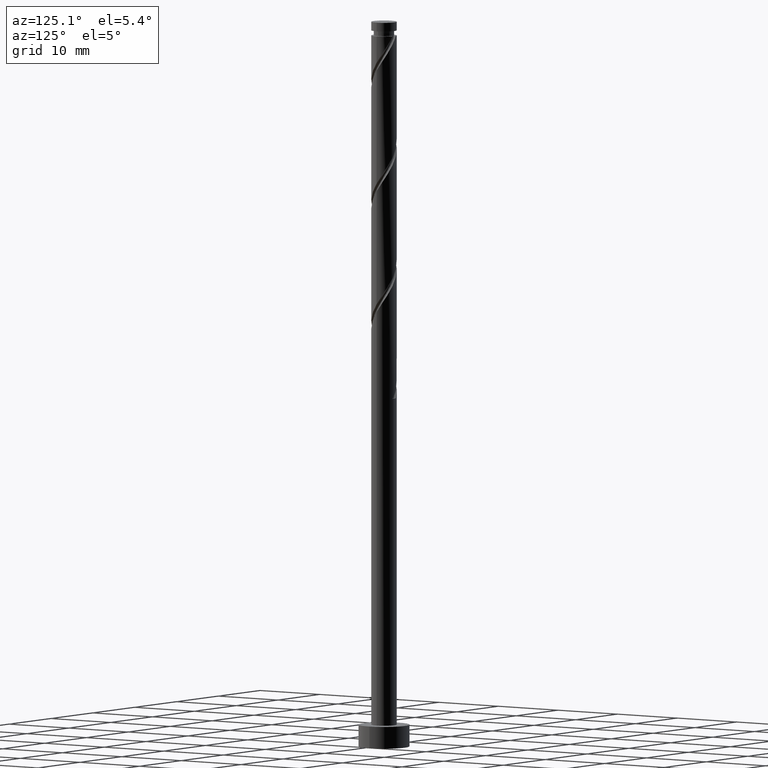
[diagram: clean part render]
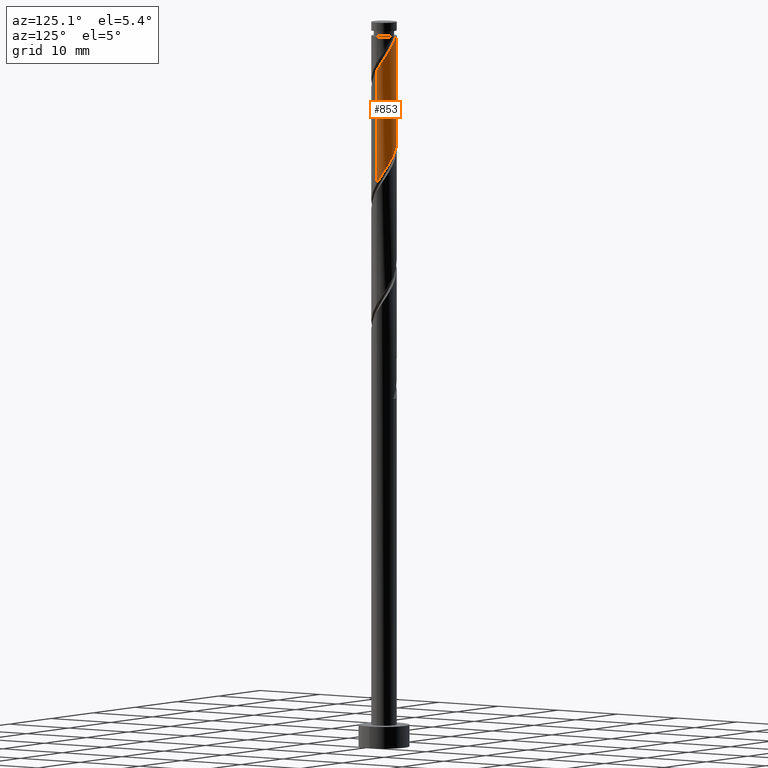
[diagram: same view with one face highlighted and labeled with its STEP entity id]
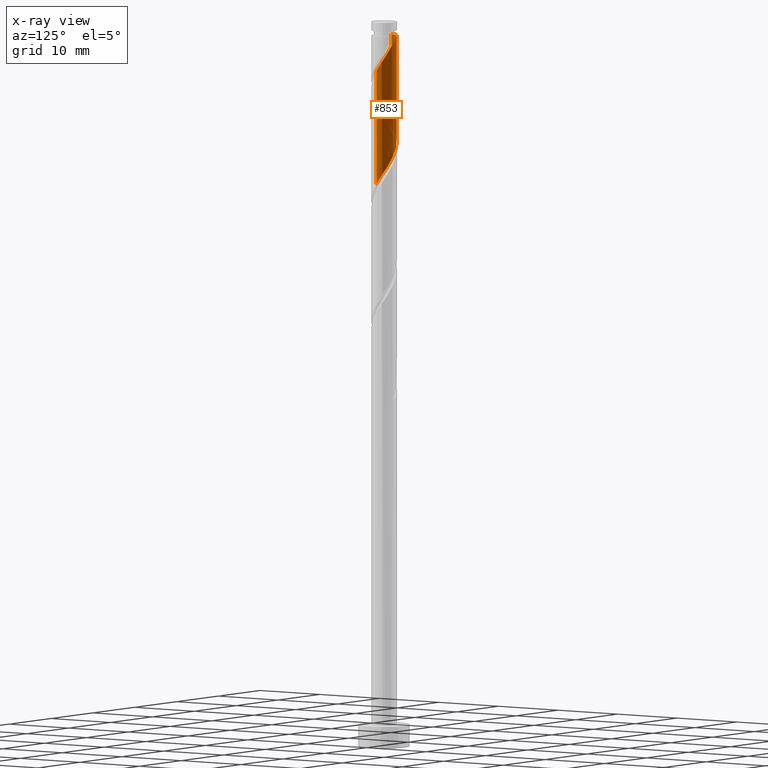
[diagram: x-ray of the same camera — body ghosted, the highlighted face saturated]
A machine part, auxiliary view. The second image highlights one B-rep face of the part: STEP entity #853.
The next image is the same camera in x-ray: the body ghosted, the highlighted face saturated — about 0% of this face is hidden behind the body in this view.
In plain terms, the highlighted cylindrical surface (edge-blend (fillet) strip) has radius 1.75 mm, axis along (-0, -0, -1).
Its self-contained STEP definition (entity closure, byte-faithful):
#7 = CARTESIAN_POINT ( 'NONE',  ( 1.750000000000001998, 0.02257793008104069798, 93.44285591133315449 ) ) ;
#12 = CARTESIAN_POINT ( 'NONE',  ( -0.8356091416033630814, 1.537614178677112253, 83.29154527757476956 ) ) ;
#26 = EDGE_CURVE ( 'NONE', #1390, #129, #1376, .T. ) ;
#27 = CARTESIAN_POINT ( 'NONE',  ( -1.515489524769283225, 0.9279053362006939309, 84.68043416646365529 ) ) ;
#33 =( BOUNDED_CURVE ( )  B_SPLINE_CURVE ( 2, ( #1128, #7, #478, #369, #114, #1479, #934, #1385, #1356, #796, #337, #700, #460 ),
 .UNSPECIFIED., .F., .T. ) 
 B_SPLINE_CURVE_WITH_KNOTS ( ( 3, 2, 2, 2, 2, 2, 3 ),
 ( 0.6795248053855292847, 0.6805555555555555802, 0.6944444444444444198, 0.7083333333333332593, 0.7222222222222222099, 0.7361111111111111605, 0.7500000000000000000 ),
 .UNSPECIFIED. ) 
 CURVE ( )  GEOMETRIC_REPRESENTATION_ITEM ( )  RATIONAL_B_SPLINE_CURVE ( ( 0.9071930855141268069, 0.9080659294509743074, 0.9090909090909141677, 0.8952797754656484086, 0.9090909090909141677, 0.8952797754656484086, 0.9090909090909141677, 0.8952797754656484086, 0.9090909090909141677, 0.8952797754656484086, 0.9090909090909141677, 0.8952797754656484086, 0.9090909090909141677 ) ) 
 REPRESENTATION_ITEM ( '' )  );
#38 = CARTESIAN_POINT ( 'NONE',  ( 1.750000000000001998, 7.693567771650252350E-16, 93.40883853740081122 ) ) ;
#47 = ORIENTED_EDGE ( 'NONE', *, *, #1189, .F. ) ;
#55 = CARTESIAN_POINT ( 'NONE',  ( 1.749999999999999778, 0.2853451506857985209, 78.23380115974399018 ) ) ;
#114 = CARTESIAN_POINT ( 'NONE',  ( 1.628473082076670186, 0.6407615944731065438, 94.40265638868586962 ) ) ;
#129 = VERTEX_POINT ( 'NONE', #1010 ) ;
#149 = CARTESIAN_POINT ( 'NONE',  ( -1.749999999999999778, 0.02257793008103501156, 86.10319760677930390 ) ) ;
#156 = CARTESIAN_POINT ( 'NONE',  ( 1.750000000000000000, 2.143131898507867804E-16, 100.0000000000000000 ) ) ;
#173 = CARTESIAN_POINT ( 'NONE',  ( 1.176970363401351971, 1.331336762922905370, 80.05080453683402197 ) ) ;
#211 = VERTEX_POINT ( 'NONE', #356 ) ;
#213 = DIRECTION ( 'NONE',  ( -1.000000000000000000, 0.000000000000000000, 0.000000000000000000 ) ) ;
#235 = DIRECTION ( 'NONE',  ( -1.000000000000000000, 0.000000000000000000, 0.000000000000000000 ) ) ;
#254 = EDGE_CURVE ( 'NONE', #1390, #211, #800, .T. ) ;
#263 = CARTESIAN_POINT ( 'NONE',  ( 1.750000000000000000, 3.660046803988976504E-16, 77.80388164737831858 ) ) ;
#281 = EDGE_LOOP ( 'NONE', ( #47, #728, #1168, #1269, #671 ) ) ;
#292 = CARTESIAN_POINT ( 'NONE',  ( 1.561334355841582866, 0.8484997595190589825, 79.12487861090809815 ) ) ;
#324 = AXIS2_PLACEMENT_3D ( 'NONE', #759, #439, #213 ) ;
#337 = CARTESIAN_POINT ( 'NONE',  ( 0.2593207224552029899, 1.730679855694090330, 97.18043416646362687 ) ) ;
#356 = CARTESIAN_POINT ( 'NONE',  ( -1.749999999999999778, -1.228729998482013646E-15, 86.13721498071166138 ) ) ;
#369 = CARTESIAN_POINT ( 'NONE',  ( 1.741456639384055149, 0.3536178527455194343, 93.93969342572290770 ) ) ;
#377 = VECTOR ( 'NONE', #1118, 1000.000000000000000 ) ;
#385 = VERTEX_POINT ( 'NONE', #38 ) ;
#403 = CARTESIAN_POINT ( 'NONE',  ( -0.2593207224552012691, 1.730679855694088776, 82.36561935164881731 ) ) ;
#438 = FACE_OUTER_BOUND ( 'NONE', #281, .T. ) ;
#439 = DIRECTION ( 'NONE',  ( -0.000000000000000000, -0.000000000000000000, -1.000000000000000000 ) ) ;
#460 = CARTESIAN_POINT ( 'NONE',  ( -0.3482456029873045034, 1.715000000000003411, 98.10636009238955069 ) ) ;
#478 = CARTESIAN_POINT ( 'NONE',  ( 1.749417510755208127, 0.04514834507553524418, 93.47673046275991737 ) ) ;
#480 = CARTESIAN_POINT ( 'NONE',  ( -0.5644862759827016241, 1.684954615668426081, 82.82858231461180765 ) ) ;
#503 = VECTOR ( 'NONE', #621, 1000.000000000000000 ) ;
#521 = CARTESIAN_POINT ( 'NONE',  ( 1.749999999999999778, 3.660046803988976504E-16, 77.80388164737831858 ) ) ;
#589 = CARTESIAN_POINT ( 'NONE',  ( -1.741456639384053151, 0.3536178527455194898, 85.60636009238959332 ) ) ;
#604 = CARTESIAN_POINT ( 'NONE',  ( -1.628473082076667966, 0.6407615944731065438, 85.14339712942658878 ) ) ;
#617 = AXIS2_PLACEMENT_3D ( 'NONE', #885, #697, #235 ) ;
#621 = DIRECTION ( 'NONE',  ( -0.000000000000000000, -0.000000000000000000, -1.000000000000000000 ) ) ;
#628 = CARTESIAN_POINT ( 'NONE',  ( 0.6506463749023342347, 1.653594904280247802, 80.97673046275993158 ) ) ;
#671 = ORIENTED_EDGE ( 'NONE', *, *, #26, .T. ) ;
#697 = DIRECTION ( 'NONE',  ( -0.000000000000000000, -0.000000000000000000, -1.000000000000000000 ) ) ;
#700 = CARTESIAN_POINT ( 'NONE',  ( -0.04584483107229913451, 1.776405095719755689, 97.64339712942664562 ) ) ;
#728 = ORIENTED_EDGE ( 'NONE', *, *, #1072, .T. ) ;
#740 = CARTESIAN_POINT ( 'NONE',  ( -1.750000000000000444, 0.000000000000000000, 98.10636009238956490 ) ) ;
#742 = CARTESIAN_POINT ( 'NONE',  ( 1.369152359621467197, 1.089918261220981899, 79.58784157387104585 ) ) ;
#759 = CARTESIAN_POINT ( 'NONE',  ( 0.000000000000000000, 0.000000000000000000, 98.10636009238956490 ) ) ;
#796 = CARTESIAN_POINT ( 'NONE',  ( 0.5644862759827036225, 1.684954615668427635, 96.71747120350072180 ) ) ;
#800 = LINE ( 'NONE', #1369, #377 ) ;
#826 = LINE ( 'NONE', #156, #503 ) ;
#853 = ADVANCED_FACE ( 'NONE', ( #438 ), #1368, .T. ) ;
#854 = CARTESIAN_POINT ( 'NONE',  ( 0.3482456029873172154, 1.715000000000000080, 81.43969342572290770 ) ) ;
#885 = CARTESIAN_POINT ( 'NONE',  ( 0.000000000000000000, 0.000000000000000000, 100.0000000000000000 ) ) ;
#934 = CARTESIAN_POINT ( 'NONE',  ( 1.311110765996655214, 1.159089538943247844, 95.32858231461176501 ) ) ;
#1010 = CARTESIAN_POINT ( 'NONE',  ( -0.3482456029873045034, 1.715000000000003411, 98.10636009238955069 ) ) ;
#1040 = CARTESIAN_POINT ( 'NONE',  ( -1.311110765996653438, 1.159089538943246733, 84.21747120350066496 ) ) ;
#1072 = EDGE_CURVE ( 'NONE', #385, #1083, #826, .T. ) ;
#1079 = CARTESIAN_POINT ( 'NONE',  ( 1.659356368983970764, 0.5559104610567540128, 78.66191564794512203 ) ) ;
#1083 = VERTEX_POINT ( 'NONE', #263 ) ;
#1118 = DIRECTION ( 'NONE',  ( -0.000000000000000000, -0.000000000000000000, -1.000000000000000000 ) ) ;
#1128 = CARTESIAN_POINT ( 'NONE',  ( 1.750000000000001998, 7.693567771650252350E-16, 93.40883853740081122 ) ) ;
#1160 = EDGE_CURVE ( 'NONE', #211, #1083, #1426, .T. ) ;
#1163 = CARTESIAN_POINT ( 'NONE',  ( -1.749999999999999778, -1.228729998482013646E-15, 86.13721498071166138 ) ) ;
#1168 = ORIENTED_EDGE ( 'NONE', *, *, #1160, .F. ) ;
#1189 = EDGE_CURVE ( 'NONE', #385, #129, #33, .T. ) ;
#1190 = CARTESIAN_POINT ( 'NONE',  ( -1.749417510755205463, 0.04514834507553545928, 86.06932305535251260 ) ) ;
#1269 = ORIENTED_EDGE ( 'NONE', *, *, #254, .F. ) ;
#1309 = CARTESIAN_POINT ( 'NONE',  ( 0.9138083691518434915, 1.492465833601576364, 80.51376749979696967 ) ) ;
#1356 = CARTESIAN_POINT ( 'NONE',  ( 0.8356091416033648578, 1.537614178677113808, 96.25450824053771726 ) ) ;
#1368 = CYLINDRICAL_SURFACE ( 'NONE', #617, 1.750000000000000000 ) ;
#1369 = CARTESIAN_POINT ( 'NONE',  ( -1.750000000000000000, 0.000000000000000000, 100.0000000000000000 ) ) ;
#1376 = CIRCLE ( 'NONE', #324, 1.750000000000000222 ) ;
#1385 = CARTESIAN_POINT ( 'NONE',  ( 1.106732007224026537, 1.390273741685801534, 95.79154527757479798 ) ) ;
#1390 = VERTEX_POINT ( 'NONE', #740 ) ;
#1403 = CARTESIAN_POINT ( 'NONE',  ( -1.106732007224024983, 1.390273741685799092, 83.75450824053770305 ) ) ;
#1426 =( BOUNDED_CURVE ( )  B_SPLINE_CURVE ( 2, ( #1163, #149, #1190, #589, #604, #27, #1040, #1403, #12, #480, #403, #1427, #854, #628, #1309, #173, #742, #292, #1079, #55, #521 ),
 .UNSPECIFIED., .F., .T. ) 
 B_SPLINE_CURVE_WITH_KNOTS ( ( 3, 2, 2, 2, 2, 2, 2, 2, 2, 2, 3 ),
 ( 0.4295248053855290071, 0.4305555555555555802, 0.4444444444444444198, 0.4583333333333333148, 0.4722222222222222099, 0.4861111111111111049, 0.5000000000000000000, 0.5138888888888888395, 0.5277777777777777901, 0.5416666666666666297, 0.5545248053855290626 ),
 .UNSPECIFIED. ) 
 CURVE ( )  GEOMETRIC_REPRESENTATION_ITEM ( )  RATIONAL_B_SPLINE_CURVE ( ( 0.9071930855141210337, 0.9080659294509687562, 0.9090909090909088386, 0.8952797754656434126, 0.9090909090909088386, 0.8952797754656434126, 0.9090909090909088386, 0.8952797754656434126, 0.9090909090909088386, 0.8952797754656434126, 0.9090909090909088386, 0.8952797754656434126, 0.9090909090909088386, 0.8952797754656434126, 0.9090909090909088386, 0.8952797754656434126, 0.9090909090909088386, 0.8952797754656434126, 0.9090909090909088386, 0.8963047551055834949, 0.9071930855141210337 ) ) 
 REPRESENTATION_ITEM ( '' )  );
#1427 = CARTESIAN_POINT ( 'NONE',  ( 0.04584483107229932880, 1.776405095719752136, 81.90265638868588383 ) ) ;
#1479 = CARTESIAN_POINT ( 'NONE',  ( 1.515489524769286334, 0.9279053362006937089, 94.86561935164885995 ) ) ;